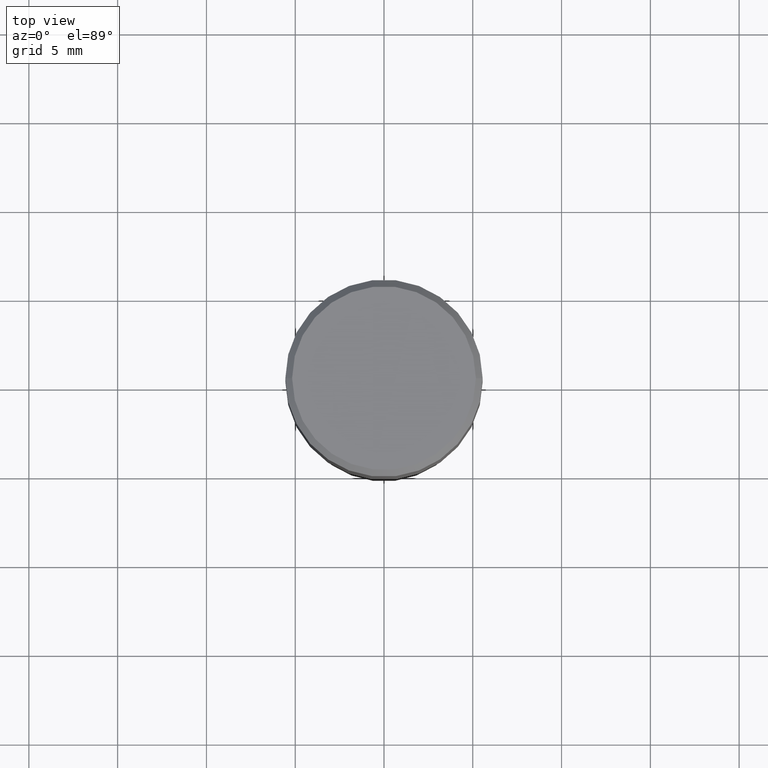
[diagram: clean part render]
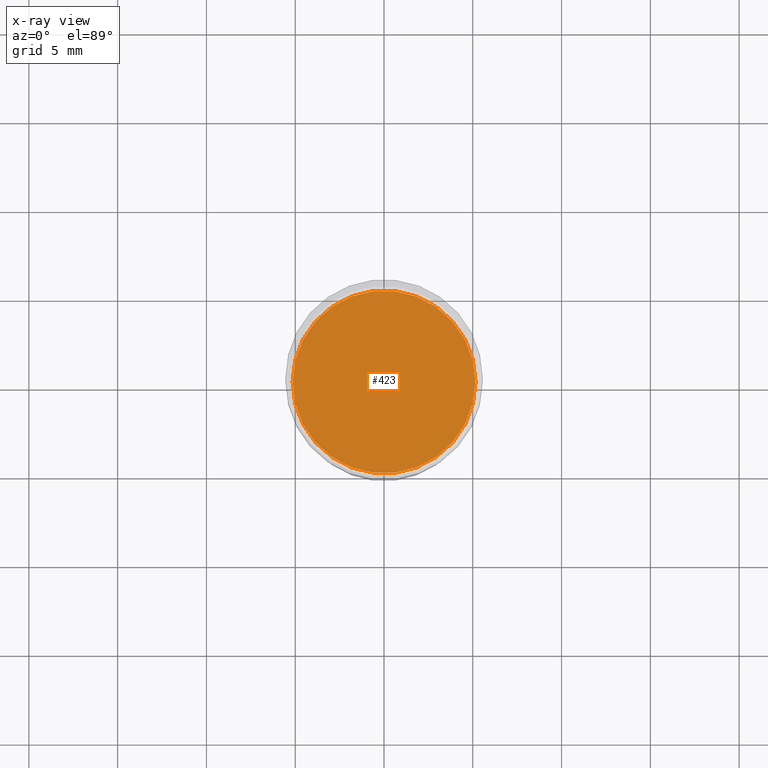
[diagram: x-ray — body ghosted, one internal face saturated and labeled with its STEP entity id]
A machine part, top view, then the same camera in x-ray: the body is ghosted and one INTERNAL B-rep face — a face not visible from any outside direction — is saturated and labeled: STEP entity #423.
In plain terms, the highlighted planar face has unit normal (-0, 0, 1).
Its self-contained STEP definition (entity closure, byte-faithful):
#27 = DIRECTION ( 'NONE',  ( 1.000000000000000000, -6.982962677686268288E-15, 0.000000000000000000 ) ) ;
#34 = DIRECTION ( 'NONE',  ( -2.445468806185136597E-29, 3.491481338843145583E-15, 1.000000000000000000 ) ) ;
#47 = PLANE ( 'NONE',  #244 ) ;
#57 = EDGE_CURVE ( 'NONE', #269, #176, #446, .T. ) ;
#103 = AXIS2_PLACEMENT_3D ( 'NONE', #275, #367, #405 ) ;
#126 = CARTESIAN_POINT ( 'NONE',  ( 1.222734403092568719E-29, -1.745740669421573186E-15, -0.5000000000000001110 ) ) ;
#144 = CARTESIAN_POINT ( 'NONE',  ( 1.222734403092568719E-29, -1.745740669421573186E-15, -0.5000000000000001110 ) ) ;
#165 = AXIS2_PLACEMENT_3D ( 'NONE', #144, #34, #27 ) ;
#166 = DIRECTION ( 'NONE',  ( 1.000000000000000000, -6.982962677686265922E-15, 4.876176775795935793E-29 ) ) ;
#169 = FACE_OUTER_BOUND ( 'NONE', #315, .T. ) ;
#176 = VERTEX_POINT ( 'NONE', #186 ) ;
#180 = CIRCLE ( 'NONE', #165, 0.2026000000000000023 ) ;
#186 = CARTESIAN_POINT ( 'NONE',  ( -0.2026000000000000023, -3.035318595974993861E-16, -0.5000000000000001110 ) ) ;
#196 = ORIENTED_EDGE ( 'NONE', *, *, #57, .F. ) ;
#244 = AXIS2_PLACEMENT_3D ( 'NONE', #126, #407, #166 ) ;
#269 = VERTEX_POINT ( 'NONE', #461 ) ;
#275 = CARTESIAN_POINT ( 'NONE',  ( 1.222734403092568719E-29, -1.745740669421573186E-15, -0.5000000000000001110 ) ) ;
#288 = ORIENTED_EDGE ( 'NONE', *, *, #365, .F. ) ;
#315 = EDGE_LOOP ( 'NONE', ( #196, #288 ) ) ;
#365 = EDGE_CURVE ( 'NONE', #176, #269, #180, .T. ) ;
#367 = DIRECTION ( 'NONE',  ( -2.445468806185136597E-29, 3.491481338843145583E-15, 1.000000000000000000 ) ) ;
#405 = DIRECTION ( 'NONE',  ( 1.000000000000000000, -6.982962677686268288E-15, 0.000000000000000000 ) ) ;
#407 = DIRECTION ( 'NONE',  ( -2.438088387897960049E-29, 3.491481338843145188E-15, 1.000000000000000000 ) ) ;
#423 = ADVANCED_FACE ( 'NONE', ( #169 ), #47, .F. ) ;
#446 = CIRCLE ( 'NONE', #103, 0.2026000000000000023 ) ;
#461 = CARTESIAN_POINT ( 'NONE',  ( 0.2026000000000000023, -3.160488907920811151E-15, -0.5000000000000001110 ) ) ;